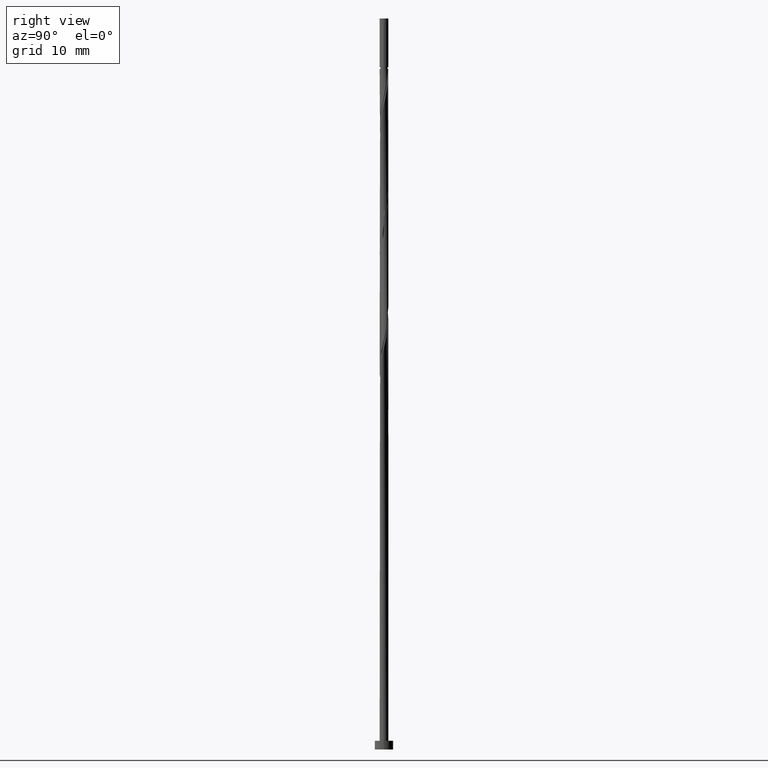
[diagram: clean part render]
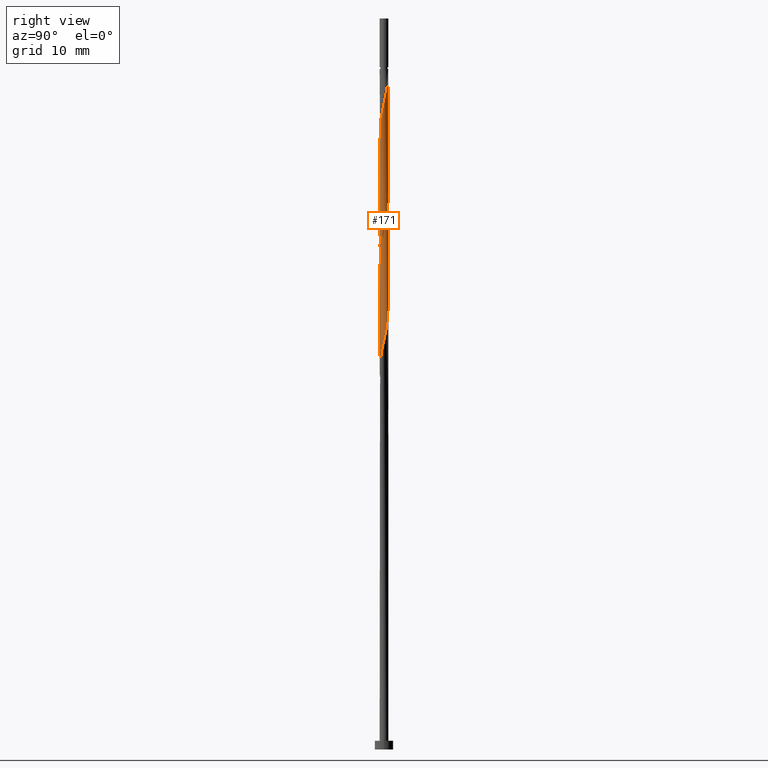
[diagram: same view with one face highlighted and labeled with its STEP entity id]
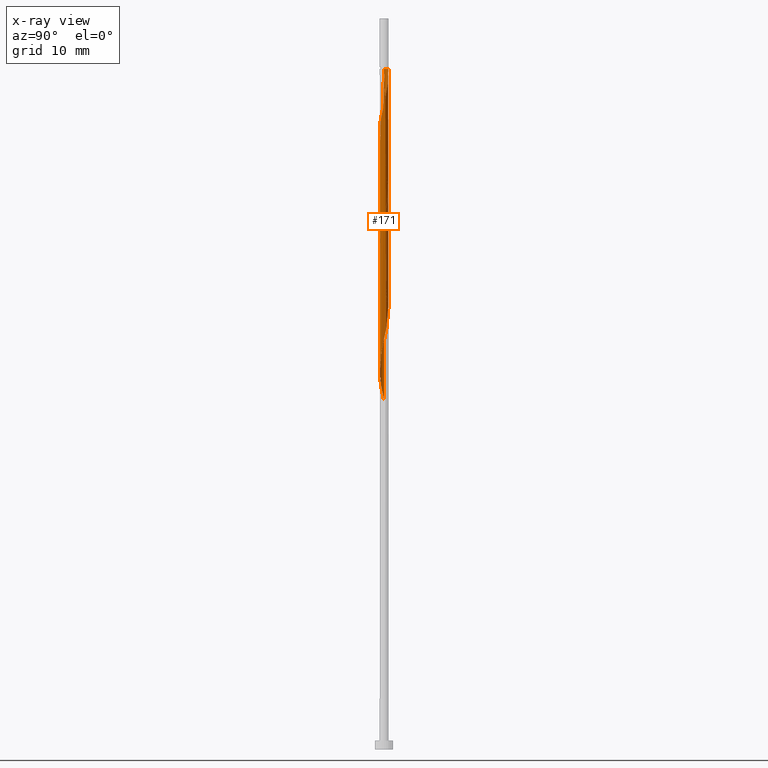
[diagram: x-ray of the same camera — body ghosted, the highlighted face saturated]
A machine part, right view. The second image highlights one B-rep face of the part: STEP entity #171.
The next image is the same camera in x-ray: the body ghosted, the highlighted face saturated — about 0% of this face is hidden behind the body in this view.
In plain terms, the highlighted cylindrical surface (bore or boss wall) has radius 0.6 mm, axis along (-0, -0, -1).
Its self-contained STEP definition (entity closure, byte-faithful):
#9 = EDGE_CURVE ( 'NONE', #1010, #159, #410, .T. ) ;
#10 = CARTESIAN_POINT ( 'NONE',  ( 0.5353146362885433662, 0.2909142032636777286, 57.44466876805907418 ) ) ;
#51 = EDGE_CURVE ( 'NONE', #437, #60, #1155, .T. ) ;
#60 = VERTEX_POINT ( 'NONE', #91 ) ;
#74 = CARTESIAN_POINT ( 'NONE',  ( -0.4495236911988535478, 0.3974021276376851763, 79.20392802731835502 ) ) ;
#83 = CARTESIAN_POINT ( 'NONE',  ( -0.01571822779622032706, 0.6090531756753451154, 92.62985395324429305 ) ) ;
#87 = CARTESIAN_POINT ( 'NONE',  ( 0.6025297310147526009, 0.09028154146095354604, 56.51874284213315747 ) ) ;
#91 = CARTESIAN_POINT ( 'NONE',  ( -0.6000000000000008660, -3.538667700795459816E-16, 47.79033847119598732 ) ) ;
#93 = CARTESIAN_POINT ( 'NONE',  ( 0.3794509739053803510, 0.4766652828637031325, 90.77800210139241699 ) ) ;
#96 = CARTESIAN_POINT ( 'NONE',  ( 0.5998002894017855358, -0.01547943259732668247, 72.72244654583685985 ) ) ;
#104 = ORIENTED_EDGE ( 'NONE', *, *, #435, .T. ) ;
#106 = CARTESIAN_POINT ( 'NONE',  ( 0.5583336281405725243, -0.2196896895336368227, 71.79652061991093603 ) ) ;
#113 = CARTESIAN_POINT ( 'NONE',  ( -0.4694236661559322288, -0.3736862609900515331, 66.24096506435537890 ) ) ;
#121 = CARTESIAN_POINT ( 'NONE',  ( 0.4035326960233212024, 0.4564583187164253930, 58.37059469398500511 ) ) ;
#159 = VERTEX_POINT ( 'NONE', #1350 ) ;
#171 = ADVANCED_FACE ( 'NONE', ( #596 ), #1232, .T. ) ;
#183 = CARTESIAN_POINT ( 'NONE',  ( -0.6000000000000009770, 0.007741004599211600591, 81.08965443059696554 ) ) ;
#199 = CARTESIAN_POINT ( 'NONE',  ( 0.5353146362885432552, -0.2909142032636777286, 87.07429839768870750 ) ) ;
#204 = CARTESIAN_POINT ( 'NONE',  ( -0.4694236661559322288, -0.3736862609900515331, 49.57429839768872881 ) ) ;
#212 = CARTESIAN_POINT ( 'NONE',  ( -0.4495236911988535478, 0.3974021276376851763, 62.53726136065166941 ) ) ;
#214 = EDGE_LOOP ( 'NONE', ( #1119, #494, #1362, #1213, #568, #1226, #104, #582 ) ) ;
#219 = CARTESIAN_POINT ( 'NONE',  ( -0.1193984924527945607, -0.5880000000000009663, 68.09281691620724075 ) ) ;
#227 = CARTESIAN_POINT ( 'NONE',  ( 0.01571822779621694435, 0.6090531756753444492, 60.22244654583686696 ) ) ;
#261 = DIRECTION ( 'NONE',  ( -0.000000000000000000, -0.000000000000000000, -1.000000000000000000 ) ) ;
#281 = CARTESIAN_POINT ( 'NONE',  ( -0.5998002894017856468, -0.01547943259732641533, 80.12985395324423621 ) ) ;
#292 = CARTESIAN_POINT ( 'NONE',  ( -0.08890996198464053146, 0.5933759505236886334, 77.35207617546649317 ) ) ;
#293 = CARTESIAN_POINT ( 'NONE',  ( 0.2864945628354393925, 0.5271820041178677529, 91.24096506435537890 ) ) ;
#299 = CARTESIAN_POINT ( 'NONE',  ( 0.6000000000000008660, 0.09783262309227466758, 73.22025798356162340 ) ) ;
#302 = CARTESIAN_POINT ( 'NONE',  ( 0.1193984924527944358, -0.5880000000000007443, 84.75948358287389794 ) ) ;
#305 = CARTESIAN_POINT ( 'NONE',  ( -0.1193984924527945607, -0.5880000000000009663, 51.42615024954055514 ) ) ;
#313 = CARTESIAN_POINT ( 'NONE',  ( 0.6000000000000007550, 1.204454177843309618E-16, 72.79033847119599443 ) ) ;
#321 = CARTESIAN_POINT ( 'NONE',  ( 0.6000000000000007550, -0.007741004599211861667, 72.75632109726363694 ) ) ;
#327 = CARTESIAN_POINT ( 'NONE',  ( 0.3794509739053802400, -0.4766652828637032990, 70.40763173102205030 ) ) ;
#340 = EDGE_CURVE ( 'NONE', #578, #1010, #639, .T. ) ;
#347 = AXIS2_PLACEMENT_3D ( 'NONE', #400, #1360, #909 ) ;
#366 = LINE ( 'NONE', #766, #1100 ) ;
#390 = CARTESIAN_POINT ( 'NONE',  ( 0.5689221836516477060, -0.1905978723623161508, 87.53726136065168362 ) ) ;
#396 = CARTESIAN_POINT ( 'NONE',  ( 0.4694236661559323398, 0.3736862609900514220, 74.57429839768873592 ) ) ;
#397 = CARTESIAN_POINT ( 'NONE',  ( -0.1193984924527942554, 0.5879999999999997451, 93.09281691620721233 ) ) ;
#399 = CARTESIAN_POINT ( 'NONE',  ( 0.08890996198464050371, -0.5933759505236886334, 52.35207617546649317 ) ) ;
#400 = CARTESIAN_POINT ( 'NONE',  ( 0.000000000000000000, 0.000000000000000000, 100.0000000000000000 ) ) ;
#402 = CARTESIAN_POINT ( 'NONE',  ( 0.5353146362885433662, 0.2909142032636777286, 74.11133543472577401 ) ) ;
#409 = CARTESIAN_POINT ( 'NONE',  ( -0.4035326960233209248, -0.4564583187164256706, 50.03726136065166941 ) ) ;
#410 =( BOUNDED_CURVE ( )  B_SPLINE_CURVE ( 2, ( #696, #183, #589, #1260, #1017, #805, #74, #598, #1234, #724, #292, #412, #1022, #703, #1250, #1346, #396, #402, #1242, #299, #710 ),
 .UNSPECIFIED., .F., .T. ) 
 B_SPLINE_CURVE_WITH_KNOTS ( ( 3, 2, 2, 2, 2, 2, 2, 2, 2, 2, 3 ),
 ( 0.4295248053855289516, 0.4305555555555555802, 0.4444444444444444198, 0.4583333333333333148, 0.4722222222222222099, 0.4861111111111111049, 0.5000000000000000000, 0.5138888888888888395, 0.5277777777777777901, 0.5416666666666666297, 0.5545248053855289516 ),
 .UNSPECIFIED. ) 
 CURVE ( )  GEOMETRIC_REPRESENTATION_ITEM ( )  RATIONAL_B_SPLINE_CURVE ( ( 0.9071930855141222549, 0.9080659294509699775, 0.9090909090909101709, 0.8952797754656447449, 0.9090909090909101709, 0.8952797754656447449, 0.9090909090909101709, 0.8952797754656447449, 0.9090909090909101709, 0.8952797754656447449, 0.9090909090909101709, 0.8952797754656447449, 0.9090909090909101709, 0.8952797754656447449, 0.9090909090909101709, 0.8952797754656447449, 0.9090909090909101709, 0.8952797754656447449, 0.9090909090909101709, 0.8963047551055849382, 0.9071930855141222549 ) ) 
 REPRESENTATION_ITEM ( '' )  );
#412 = CARTESIAN_POINT ( 'NONE',  ( 0.01571822779621694435, 0.6090531756753444492, 76.88911321250354547 ) ) ;
#415 = CARTESIAN_POINT ( 'NONE',  ( -0.5195964084923263560, -0.3181389724116667761, 81.51874284213316457 ) ) ;
#418 = CARTESIAN_POINT ( 'NONE',  ( 0.08890996198464050371, -0.5933759505236886334, 69.01874284213316457 ) ) ;
#427 = CARTESIAN_POINT ( 'NONE',  ( 0.5583336281405725243, -0.2196896895336368227, 55.12985395324426463 ) ) ;
#428 = DIRECTION ( 'NONE',  ( -0.000000000000000000, -0.000000000000000000, -1.000000000000000000 ) ) ;
#435 = EDGE_CURVE ( 'NONE', #1264, #159, #366, .T. ) ;
#437 = VERTEX_POINT ( 'NONE', #889 ) ;
#494 = ORIENTED_EDGE ( 'NONE', *, *, #720, .T. ) ;
#499 = CARTESIAN_POINT ( 'NONE',  ( 0.4495236911988533257, -0.3974021276376853429, 54.20392802731834081 ) ) ;
#509 = CARTESIAN_POINT ( 'NONE',  ( 0.1193984924527946440, 0.5880000000000009663, 59.75948358287389794 ) ) ;
#512 = CARTESIAN_POINT ( 'NONE',  ( -0.1935381517654979899, -0.5776987253720321513, 83.37059469398496958 ) ) ;
#516 = CARTESIAN_POINT ( 'NONE',  ( 0.2864945628354391705, -0.5271820041178677529, 69.94466876805908839 ) ) ;
#522 = CARTESIAN_POINT ( 'NONE',  ( -0.5353146362885433662, -0.2909142032636777286, 65.77800210139241699 ) ) ;
#545 = CARTESIAN_POINT ( 'NONE',  ( -0.5999999999999999778, 0.000000000000000000, 100.0000000000000000 ) ) ;
#568 = ORIENTED_EDGE ( 'NONE', *, *, #1116, .F. ) ;
#576 = EDGE_CURVE ( 'NONE', #437, #1357, #1093, .T. ) ;
#578 = VERTEX_POINT ( 'NONE', #1156 ) ;
#582 = ORIENTED_EDGE ( 'NONE', *, *, #9, .F. ) ;
#589 = CARTESIAN_POINT ( 'NONE',  ( -0.5998002894017856468, 0.01547943259732646910, 81.05577987917020266 ) ) ;
#596 = FACE_OUTER_BOUND ( 'NONE', #214, .T. ) ;
#598 = CARTESIAN_POINT ( 'NONE',  ( -0.3794509739053802955, 0.4766652828637032990, 78.74096506435539311 ) ) ;
#602 = CARTESIAN_POINT ( 'NONE',  ( 0.5998002894017855358, -0.01547943259732668247, 56.05577987917020977 ) ) ;
#607 = CARTESIAN_POINT ( 'NONE',  ( -0.5999999999999999778, 0.000000000000000000, 100.0000000000000000 ) ) ;
#612 = CARTESIAN_POINT ( 'NONE',  ( -0.4035326960233209248, -0.4564583187164256706, 66.70392802731834081 ) ) ;
#619 = CARTESIAN_POINT ( 'NONE',  ( 0.5970708477888191368, -0.1212404066556069249, 72.25948358287391216 ) ) ;
#626 = CARTESIAN_POINT ( 'NONE',  ( -0.3133057265663465873, -0.5117025715205414382, 67.16689099028130272 ) ) ;
#632 = CARTESIAN_POINT ( 'NONE',  ( 0.2230787571093721111, 0.5669468243246569283, 59.29652061991092182 ) ) ;
#639 = LINE ( 'NONE', #545, #1318 ) ;
#648 = CIRCLE ( 'NONE', #985, 0.6000000000000007550 ) ;
#650 = CARTESIAN_POINT ( 'NONE',  ( -0.1193984924527942554, 0.5879999999999997451, 93.09281691620721233 ) ) ;
#655 = CARTESIAN_POINT ( 'NONE',  ( -0.6000000000000008660, -3.538667700795460309E-16, 47.79033847119598732 ) ) ;
#690 = CARTESIAN_POINT ( 'NONE',  ( -0.5970708477888188037, -0.1212404066556067722, 80.59281691620724075 ) ) ;
#696 = CARTESIAN_POINT ( 'NONE',  ( -0.6000000000000009770, -4.164236924946635492E-16, 81.12367180452932303 ) ) ;
#703 = CARTESIAN_POINT ( 'NONE',  ( 0.2230787571093721111, 0.5669468243246569283, 75.96318728657760744 ) ) ;
#704 = CARTESIAN_POINT ( 'NONE',  ( -0.3794509739053802400, -0.4766652828637031325, 82.44466876805907418 ) ) ;
#710 = CARTESIAN_POINT ( 'NONE',  ( 0.6000000000000007550, 1.204454177843309618E-16, 72.79033847119599443 ) ) ;
#714 = CARTESIAN_POINT ( 'NONE',  ( 0.5689221836516480391, 0.1905978723623159010, 56.98170580509612648 ) ) ;
#718 = CARTESIAN_POINT ( 'NONE',  ( 0.5970708477888188037, 0.1212404066556067028, 88.92615024954058356 ) ) ;
#720 = EDGE_CURVE ( 'NONE', #578, #1357, #648, .T. ) ;
#722 = CARTESIAN_POINT ( 'NONE',  ( 0.3794509739053802400, -0.4766652828637032990, 53.74096506435537179 ) ) ;
#724 = CARTESIAN_POINT ( 'NONE',  ( -0.1935381517654980177, 0.5776987253720323734, 77.81503913842945508 ) ) ;
#725 = CARTESIAN_POINT ( 'NONE',  ( 0.3133057265663464208, -0.5117025715205413272, 85.68540950879983598 ) ) ;
#728 = CARTESIAN_POINT ( 'NONE',  ( -0.2230787571093722776, -0.5669468243246569283, 67.62985395324425042 ) ) ;
#733 = CARTESIAN_POINT ( 'NONE',  ( -0.2864945628354391705, 0.5271820041178677529, 61.61133543472574559 ) ) ;
#742 = CARTESIAN_POINT ( 'NONE',  ( 0.5195964084923263560, -0.3181389724116672757, 71.33355765694798833 ) ) ;
#744 = DIRECTION ( 'NONE',  ( -1.000000000000000000, 0.000000000000000000, 0.000000000000000000 ) ) ;
#754 = CARTESIAN_POINT ( 'NONE',  ( 0.5999999999999999778, 7.347880794884117764E-17, 93.09281691620722654 ) ) ;
#766 = CARTESIAN_POINT ( 'NONE',  ( 0.5999999999999999778, 7.347880794884117764E-17, 100.0000000000000000 ) ) ;
#800 = CARTESIAN_POINT ( 'NONE',  ( 0.4495236911988534367, 0.3974021276376850653, 90.31503913842945508 ) ) ;
#805 = CARTESIAN_POINT ( 'NONE',  ( -0.5195964084923264670, 0.3181389724116668871, 79.66689099028133114 ) ) ;
#816 = CARTESIAN_POINT ( 'NONE',  ( 0.4694236661559323398, 0.3736862609900514220, 57.90763173102205030 ) ) ;
#829 = CARTESIAN_POINT ( 'NONE',  ( 0.08890996198464098943, 0.5933759505236881893, 92.16689099028131693 ) ) ;
#833 = CARTESIAN_POINT ( 'NONE',  ( 0.5195964084923263560, -0.3181389724116672757, 54.66689099028129561 ) ) ;
#840 = CARTESIAN_POINT ( 'NONE',  ( -0.5998002894017856468, 0.01547943259732646910, 64.38911321250353126 ) ) ;
#846 = CARTESIAN_POINT ( 'NONE',  ( 0.1935381517654978234, -0.5776987253720323734, 69.48170580509612648 ) ) ;
#851 = CARTESIAN_POINT ( 'NONE',  ( -0.6000000000000011990, -0.09783262309227336306, 48.22025798356160209 ) ) ;
#853 = DIRECTION ( 'NONE',  ( -0.000000000000000000, -0.000000000000000000, -1.000000000000000000 ) ) ;
#889 = CARTESIAN_POINT ( 'NONE',  ( -0.6000000000000009770, -3.622699387621739273E-16, 80.06196202788511584 ) ) ;
#909 = DIRECTION ( 'NONE',  ( -1.000000000000000000, 0.000000000000000000, 0.000000000000000000 ) ) ;
#917 = CARTESIAN_POINT ( 'NONE',  ( 0.01571822779621675700, -0.6090531756753445602, 84.29652061991092182 ) ) ;
#932 = CARTESIAN_POINT ( 'NONE',  ( -0.01571822779621717334, -0.6090531756753445602, 51.88911321250351705 ) ) ;
#936 = CARTESIAN_POINT ( 'NONE',  ( 0.2230787571093718613, -0.5669468243246574835, 85.22244654583684564 ) ) ;
#940 = CARTESIAN_POINT ( 'NONE',  ( -0.5195964084923264670, 0.3181389724116668871, 63.00022432361463842 ) ) ;
#951 = CARTESIAN_POINT ( 'NONE',  ( -0.5583336281405725243, 0.2196896895336368782, 63.46318728657761454 ) ) ;
#985 = AXIS2_PLACEMENT_3D ( 'NONE', #1168, #853, #744 ) ;
#994 =( BOUNDED_CURVE ( )  B_SPLINE_CURVE ( 2, ( #313, #321, #96, #619, #106, #742, #1053, #327, #516, #846, #418, #1159, #219, #728, #626, #612, #113, #522, #1045, #1154, #840, #1271, #951, #940, #212, #1257, #733, #1165, #1172, #227, #509, #632, #1060, #121, #816, #10, #714, #87, #602, #1359, #427, #833, #499, #722, #1028, #1349, #399, #932, #305, #1277, #1147, #409, #204, #1184, #1078, #851, #655 ),
 .UNSPECIFIED., .F., .T. ) 
 B_SPLINE_CURVE_WITH_KNOTS ( ( 3, 2, 2, 2, 2, 2, 2, 2, 2, 2, 2, 2, 2, 2, 2, 2, 2, 2, 2, 2, 2, 2, 2, 2, 2, 2, 2, 2, 3 ),
 ( 0.5545248053855289516, 0.5555555555555555802, 0.5694444444444444198, 0.5833333333333333703, 0.5972222222222222099, 0.6111111111111111605, 0.6250000000000000000, 0.6388888888888888395, 0.6527777777777777901, 0.6666666666666666297, 0.6805555555555555802, 0.6944444444444444198, 0.7083333333333333703, 0.7222222222222222099, 0.7361111111111111605, 0.7500000000000000000, 0.7638888888888888395, 0.7777777777777777901, 0.7916666666666666297, 0.8055555555555555802, 0.8194444444444444198, 0.8333333333333333703, 0.8472222222222222099, 0.8611111111111111605, 0.8750000000000000000, 0.8888888888888888395, 0.9027777777777777901, 0.9166666666666665186, 0.9295248053855291737 ),
 .UNSPECIFIED. ) 
 CURVE ( )  GEOMETRIC_REPRESENTATION_ITEM ( )  RATIONAL_B_SPLINE_CURVE ( ( 0.9071930855141222549, 0.9080659294509699775, 0.9090909090909101709, 0.8952797754656447449, 0.9090909090909101709, 0.8952797754656447449, 0.9090909090909101709, 0.8952797754656447449, 0.9090909090909101709, 0.8952797754656447449, 0.9090909090909101709, 0.8952797754656447449, 0.9090909090909101709, 0.8952797754656447449, 0.9090909090909101709, 0.8952797754656447449, 0.9090909090909101709, 0.8952797754656447449, 0.9090909090909101709, 0.8952797754656447449, 0.9090909090909101709, 0.8952797754656447449, 0.9090909090909101709, 0.8952797754656447449, 0.9090909090909101709, 0.8952797754656447449, 0.9090909090909101709, 0.8952797754656447449, 0.9090909090909101709, 0.8952797754656447449, 0.9090909090909101709, 0.8952797754656447449, 0.9090909090909101709, 0.8952797754656447449, 0.9090909090909101709, 0.8952797754656447449, 0.9090909090909101709, 0.8952797754656447449, 0.9090909090909101709, 0.8952797754656447449, 0.9090909090909101709, 0.8952797754656447449, 0.9090909090909101709, 0.8952797754656447449, 0.9090909090909101709, 0.8952797754656447449, 0.9090909090909101709, 0.8952797754656447449, 0.9090909090909101709, 0.8952797754656447449, 0.9090909090909101709, 0.8952797754656447449, 0.9090909090909101709, 0.8952797754656447449, 0.9090909090909101709, 0.8963047551055847162, 0.9071930855141226990 ) ) 
 REPRESENTATION_ITEM ( '' )  );
#1010 = VERTEX_POINT ( 'NONE', #1233 ) ;
#1011 = CARTESIAN_POINT ( 'NONE',  ( -0.08890996198464064249, -0.5933759505236885223, 83.83355765694797412 ) ) ;
#1017 = CARTESIAN_POINT ( 'NONE',  ( -0.5583336281405725243, 0.2196896895336368782, 80.12985395324430726 ) ) ;
#1018 = CARTESIAN_POINT ( 'NONE',  ( 0.1935381517654983230, 0.5776987253720321513, 91.70392802731835502 ) ) ;
#1022 = CARTESIAN_POINT ( 'NONE',  ( 0.1193984924527946440, 0.5880000000000009663, 76.42615024954058356 ) ) ;
#1024 = CARTESIAN_POINT ( 'NONE',  ( 0.5998002894017856468, 0.01547943259732646910, 88.46318728657760744 ) ) ;
#1028 = CARTESIAN_POINT ( 'NONE',  ( 0.2864945628354391705, -0.5271820041178677529, 53.27800210139241699 ) ) ;
#1031 = DIRECTION ( 'NONE',  ( -0.000000000000000000, -0.000000000000000000, -1.000000000000000000 ) ) ;
#1033 = CARTESIAN_POINT ( 'NONE',  ( 0.5195964084923265780, 0.3181389724116664985, 89.85207617546649317 ) ) ;
#1045 = CARTESIAN_POINT ( 'NONE',  ( -0.5689221836516480391, -0.1905978723623157067, 65.31503913842946929 ) ) ;
#1053 = CARTESIAN_POINT ( 'NONE',  ( 0.4495236911988533257, -0.3974021276376853429, 70.87059469398499800 ) ) ;
#1060 = CARTESIAN_POINT ( 'NONE',  ( 0.3133057265663468649, 0.5117025715205412162, 58.83355765694797412 ) ) ;
#1078 = CARTESIAN_POINT ( 'NONE',  ( -0.5689221836516480391, -0.1905978723623157067, 48.64837247176277657 ) ) ;
#1093 =( BOUNDED_CURVE ( )  B_SPLINE_CURVE ( 2, ( #1327, #1221, #281, #690, #1303, #415, #1261, #704, #1127, #512, #1011, #917, #302, #936, #725, #1354, #1364, #199, #390, #1141, #1024, #718, #1332, #1033, #800, #93, #293, #1018, #829, #83, #397 ),
 .UNSPECIFIED., .F., .T. ) 
 B_SPLINE_CURVE_WITH_KNOTS ( ( 3, 2, 2, 2, 2, 2, 2, 2, 2, 2, 2, 2, 2, 2, 2, 3 ),
 ( 0.5545248053855286186, 0.5555555555555555802, 0.5694444444444444198, 0.5833333333333333703, 0.5972222222222223209, 0.6111111111111112715, 0.6250000000000001110, 0.6388888888888890616, 0.6527777777777780122, 0.6666666666666669627, 0.6805555555555558023, 0.6944444444444447528, 0.7083333333333335924, 0.7222222222222225430, 0.7361111111111116045, 0.7500000000000004441 ),
 .UNSPECIFIED. ) 
 CURVE ( )  GEOMETRIC_REPRESENTATION_ITEM ( )  RATIONAL_B_SPLINE_CURVE ( ( 0.9071930855141210337, 0.9080659294509689783, 0.9090909090909096157, 0.8952797754656441898, 0.9090909090909096157, 0.8952797754656441898, 0.9090909090909096157, 0.8952797754656441898, 0.9090909090909096157, 0.8952797754656441898, 0.9090909090909096157, 0.8952797754656441898, 0.9090909090909096157, 0.8952797754656441898, 0.9090909090909096157, 0.8952797754656441898, 0.9090909090909096157, 0.8952797754656441898, 0.9090909090909096157, 0.8952797754656441898, 0.9090909090909096157, 0.8952797754656441898, 0.9090909090909096157, 0.8952797754656441898, 0.9090909090909096157, 0.8952797754656441898, 0.9090909090909096157, 0.8952797754656441898, 0.9090909090909096157, 0.8952797754656437457, 0.9090909090909100598 ) ) 
 REPRESENTATION_ITEM ( '' )  );
#1100 = VECTOR ( 'NONE', #261, 1000.000000000000000 ) ;
#1116 = EDGE_CURVE ( 'NONE', #159, #60, #994, .T. ) ;
#1119 = ORIENTED_EDGE ( 'NONE', *, *, #340, .F. ) ;
#1127 = CARTESIAN_POINT ( 'NONE',  ( -0.2864945628354393925, -0.5271820041178677529, 82.90763173102205030 ) ) ;
#1138 = VECTOR ( 'NONE', #1031, 1000.000000000000000 ) ;
#1141 = CARTESIAN_POINT ( 'NONE',  ( 0.6025297310147521568, -0.09028154146095432320, 88.00022432361463132 ) ) ;
#1147 = CARTESIAN_POINT ( 'NONE',  ( -0.3133057265663465873, -0.5117025715205414382, 50.50022432361463842 ) ) ;
#1154 = CARTESIAN_POINT ( 'NONE',  ( -0.6025297310147527119, -0.09028154146095392074, 64.85207617546649317 ) ) ;
#1155 = LINE ( 'NONE', #607, #1138 ) ;
#1156 = CARTESIAN_POINT ( 'NONE',  ( -0.6000000000000007550, 0.000000000000000000, 93.09281691620722654 ) ) ;
#1159 = CARTESIAN_POINT ( 'NONE',  ( -0.01571822779621717334, -0.6090531756753445602, 68.55577987917018845 ) ) ;
#1165 = CARTESIAN_POINT ( 'NONE',  ( -0.1935381517654980177, 0.5776987253720323734, 61.14837247176276946 ) ) ;
#1168 = CARTESIAN_POINT ( 'NONE',  ( 0.000000000000000000, 0.000000000000000000, 93.09281691620722654 ) ) ;
#1172 = CARTESIAN_POINT ( 'NONE',  ( -0.08890996198464053146, 0.5933759505236886334, 60.68540950879982887 ) ) ;
#1184 = CARTESIAN_POINT ( 'NONE',  ( -0.5353146362885433662, -0.2909142032636777286, 49.11133543472573848 ) ) ;
#1213 = ORIENTED_EDGE ( 'NONE', *, *, #51, .T. ) ;
#1221 = CARTESIAN_POINT ( 'NONE',  ( -0.6000000000000010880, -0.007741004599209023659, 80.09597940181745912 ) ) ;
#1226 = ORIENTED_EDGE ( 'NONE', *, *, #435, .F. ) ;
#1232 = CYLINDRICAL_SURFACE ( 'NONE', #347, 0.5999999999999999778 ) ;
#1233 = CARTESIAN_POINT ( 'NONE',  ( -0.6000000000000009770, -4.164236924946635492E-16, 81.12367180452932303 ) ) ;
#1234 = CARTESIAN_POINT ( 'NONE',  ( -0.2864945628354391705, 0.5271820041178677529, 78.27800210139241699 ) ) ;
#1242 = CARTESIAN_POINT ( 'NONE',  ( 0.5689221836516480391, 0.1905978723623159010, 73.64837247176279789 ) ) ;
#1250 = CARTESIAN_POINT ( 'NONE',  ( 0.3133057265663468649, 0.5117025715205412162, 75.50022432361465974 ) ) ;
#1257 = CARTESIAN_POINT ( 'NONE',  ( -0.3794509739053802955, 0.4766652828637032990, 62.07429839768871460 ) ) ;
#1260 = CARTESIAN_POINT ( 'NONE',  ( -0.5970708477888191368, 0.1212404066556068832, 80.59281691620724075 ) ) ;
#1261 = CARTESIAN_POINT ( 'NONE',  ( -0.4495236911988535478, -0.3974021276376848988, 81.98170580509611227 ) ) ;
#1264 = VERTEX_POINT ( 'NONE', #754 ) ;
#1271 = CARTESIAN_POINT ( 'NONE',  ( -0.5970708477888191368, 0.1212404066556068832, 63.92615024954056224 ) ) ;
#1277 = CARTESIAN_POINT ( 'NONE',  ( -0.2230787571093722776, -0.5669468243246569283, 50.96318728657759323 ) ) ;
#1303 = CARTESIAN_POINT ( 'NONE',  ( -0.5583336281405727464, -0.2196896895336367950, 81.05577987917021687 ) ) ;
#1318 = VECTOR ( 'NONE', #428, 1000.000000000000000 ) ;
#1327 = CARTESIAN_POINT ( 'NONE',  ( -0.6000000000000009770, -3.622699387621739273E-16, 80.06196202788511584 ) ) ;
#1332 = CARTESIAN_POINT ( 'NONE',  ( 0.5583336281405728574, 0.2196896895336366007, 89.38911321250353126 ) ) ;
#1346 = CARTESIAN_POINT ( 'NONE',  ( 0.4035326960233212024, 0.4564583187164253930, 75.03726136065168362 ) ) ;
#1349 = CARTESIAN_POINT ( 'NONE',  ( 0.1935381517654978234, -0.5776987253720323734, 52.81503913842944797 ) ) ;
#1350 = CARTESIAN_POINT ( 'NONE',  ( 0.6000000000000007550, 1.204454177843309618E-16, 72.79033847119599443 ) ) ;
#1354 = CARTESIAN_POINT ( 'NONE',  ( 0.4035326960233206472, -0.4564583187164257816, 86.14837247176278368 ) ) ;
#1357 = VERTEX_POINT ( 'NONE', #650 ) ;
#1359 = CARTESIAN_POINT ( 'NONE',  ( 0.5970708477888191368, -0.1212404066556069249, 55.59281691620722654 ) ) ;
#1360 = DIRECTION ( 'NONE',  ( -0.000000000000000000, -0.000000000000000000, -1.000000000000000000 ) ) ;
#1362 = ORIENTED_EDGE ( 'NONE', *, *, #576, .F. ) ;
#1364 = CARTESIAN_POINT ( 'NONE',  ( 0.4694236661559321178, -0.3736862609900515886, 86.61133543472575980 ) ) ;